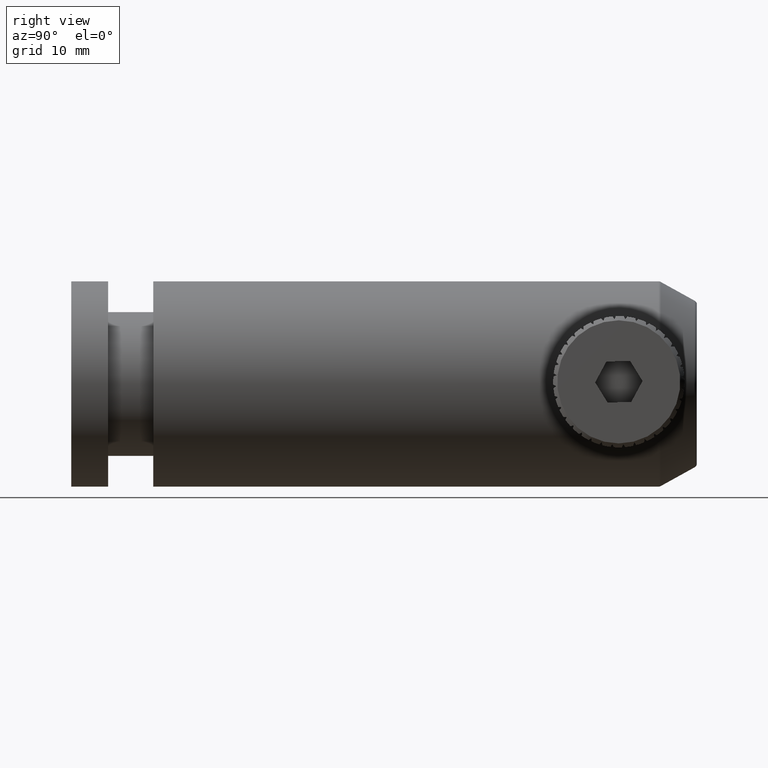
[diagram: clean part render]
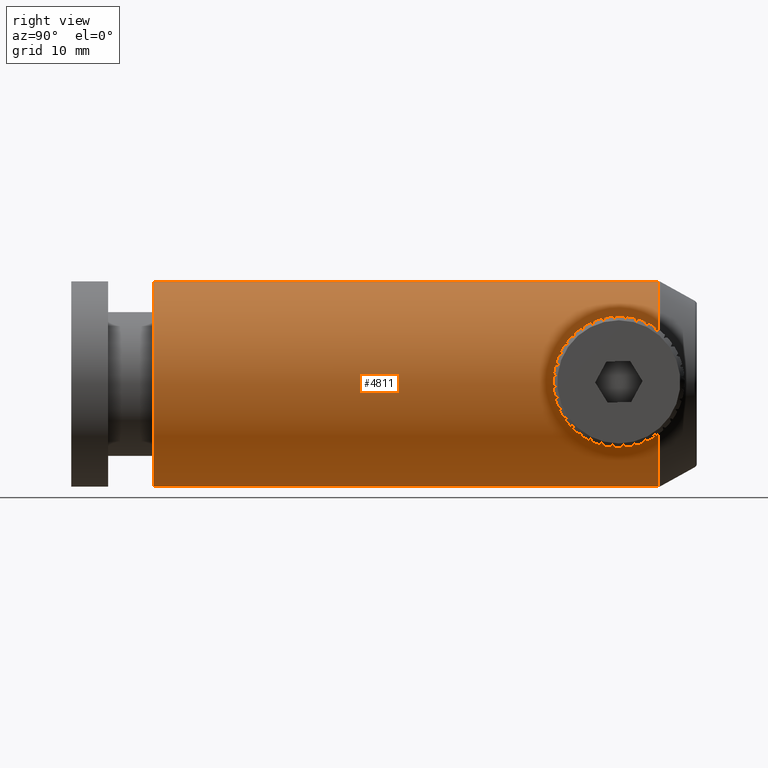
[diagram: same view with one face highlighted and labeled with its STEP entity id]
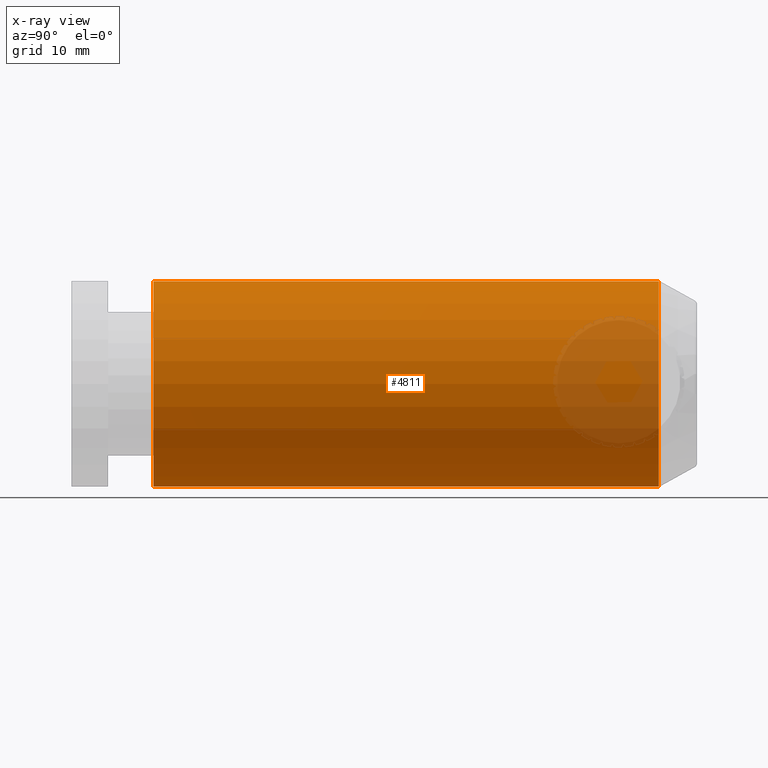
[diagram: x-ray of the same camera — body ghosted, the highlighted face saturated]
A machine part, right view. The second image highlights one B-rep face of the part: STEP entity #4811.
The next image is the same camera in x-ray: the body ghosted, the highlighted face saturated — about 10% of this face is hidden behind the body in this view.
In plain terms, the highlighted cylindrical surface (partial cylindrical patch) has radius 12.5 mm, axis along (-0, -1, -0).
Its self-contained STEP definition (entity closure, byte-faithful):
#79 = CIRCLE ( 'NONE', #2118, 12.50000000000000000 ) ;
#162 = CARTESIAN_POINT ( 'NONE',  ( -3.194185020997174700, -6.313612059609847700, -12.50000000000000000 ) ) ;
#320 = DIRECTION ( 'NONE',  ( -0.0000000000000000000, -1.000000000000000000, -0.0000000000000000000 ) ) ;
#335 = DIRECTION ( 'NONE',  ( -0.0000000000000000000, -1.000000000000000000, -0.0000000000000000000 ) ) ;
#449 = DIRECTION ( 'NONE',  ( 0.0000000000000000000, 0.0000000000000000000, -1.000000000000000000 ) ) ;
#505 = EDGE_CURVE ( 'NONE', #2740, #3660, #744, .T. ) ;
#667 = CARTESIAN_POINT ( 'NONE',  ( -3.194185020997174700, 55.25682492629151500, -12.50000000000000000 ) ) ;
#744 = LINE ( 'NONE', #4611, #3716 ) ;
#954 = CARTESIAN_POINT ( 'NONE',  ( -3.194185020997173400, -6.313612059609847700, 12.50000000000000000 ) ) ;
#982 = VERTEX_POINT ( 'NONE', #162 ) ;
#1458 = CYLINDRICAL_SURFACE ( 'NONE', #2493, 12.50000000000000000 ) ;
#1639 = CARTESIAN_POINT ( 'NONE',  ( -3.194185020997174700, -24.86122148995913500, -12.50000000000000000 ) ) ;
#1867 = AXIS2_PLACEMENT_3D ( 'NONE', #3687, #3294, #449 ) ;
#2118 = AXIS2_PLACEMENT_3D ( 'NONE', #4358, #335, #3163 ) ;
#2124 = EDGE_CURVE ( 'NONE', #3768, #982, #3547, .T. ) ;
#2191 = ORIENTED_EDGE ( 'NONE', *, *, #2427, .T. ) ;
#2306 = ORIENTED_EDGE ( 'NONE', *, *, #3137, .F. ) ;
#2427 = EDGE_CURVE ( 'NONE', #3768, #2740, #79, .T. ) ;
#2469 = DIRECTION ( 'NONE',  ( -0.0000000000000000000, -1.000000000000000000, -0.0000000000000000000 ) ) ;
#2493 = AXIS2_PLACEMENT_3D ( 'NONE', #3607, #320, #3564 ) ;
#2589 = CARTESIAN_POINT ( 'NONE',  ( -3.194185020997173400, 55.25682492629151500, 12.50000000000000000 ) ) ;
#2605 = VECTOR ( 'NONE', #2469, 1000.000000000000000 ) ;
#2719 = ORIENTED_EDGE ( 'NONE', *, *, #505, .T. ) ;
#2740 = VERTEX_POINT ( 'NONE', #2589 ) ;
#2990 = DIRECTION ( 'NONE',  ( -0.0000000000000000000, -1.000000000000000000, -0.0000000000000000000 ) ) ;
#3137 = EDGE_CURVE ( 'NONE', #982, #3660, #3542, .T. ) ;
#3163 = DIRECTION ( 'NONE',  ( 0.0000000000000000000, 0.0000000000000000000, -1.000000000000000000 ) ) ;
#3294 = DIRECTION ( 'NONE',  ( -0.0000000000000000000, -1.000000000000000000, -0.0000000000000000000 ) ) ;
#3542 = CIRCLE ( 'NONE', #1867, 12.50000000000000000 ) ;
#3547 = LINE ( 'NONE', #1639, #2605 ) ;
#3564 = DIRECTION ( 'NONE',  ( 0.0000000000000000000, 0.0000000000000000000, -1.000000000000000000 ) ) ;
#3607 = CARTESIAN_POINT ( 'NONE',  ( -3.194185020997174700, -24.86122148995913500, 0.0000000000000000000 ) ) ;
#3660 = VERTEX_POINT ( 'NONE', #954 ) ;
#3687 = CARTESIAN_POINT ( 'NONE',  ( -3.194185020997174700, -6.313612059609847700, 0.0000000000000000000 ) ) ;
#3716 = VECTOR ( 'NONE', #2990, 1000.000000000000000 ) ;
#3768 = VERTEX_POINT ( 'NONE', #667 ) ;
#4067 = FACE_OUTER_BOUND ( 'NONE', #5181, .T. ) ;
#4358 = CARTESIAN_POINT ( 'NONE',  ( -3.194185020997174700, 55.25682492629151500, 0.0000000000000000000 ) ) ;
#4611 = CARTESIAN_POINT ( 'NONE',  ( -3.194185020997173400, -24.86122148995913500, 12.50000000000000000 ) ) ;
#4811 = ADVANCED_FACE ( 'NONE', ( #4067 ), #1458, .T. ) ;
#5181 = EDGE_LOOP ( 'NONE', ( #2191, #2719, #2306, #5218 ) ) ;
#5218 = ORIENTED_EDGE ( 'NONE', *, *, #2124, .F. ) ;